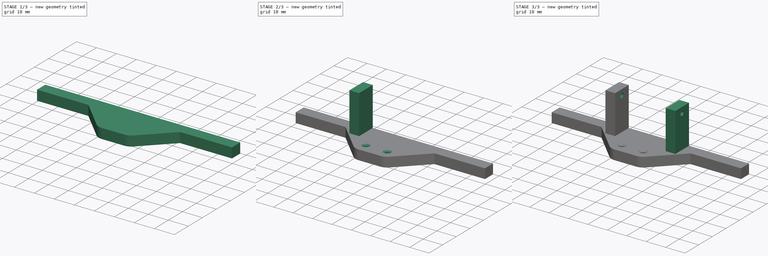
[diagram: build sequence overview — one tinted view per stage of 3, left to right]
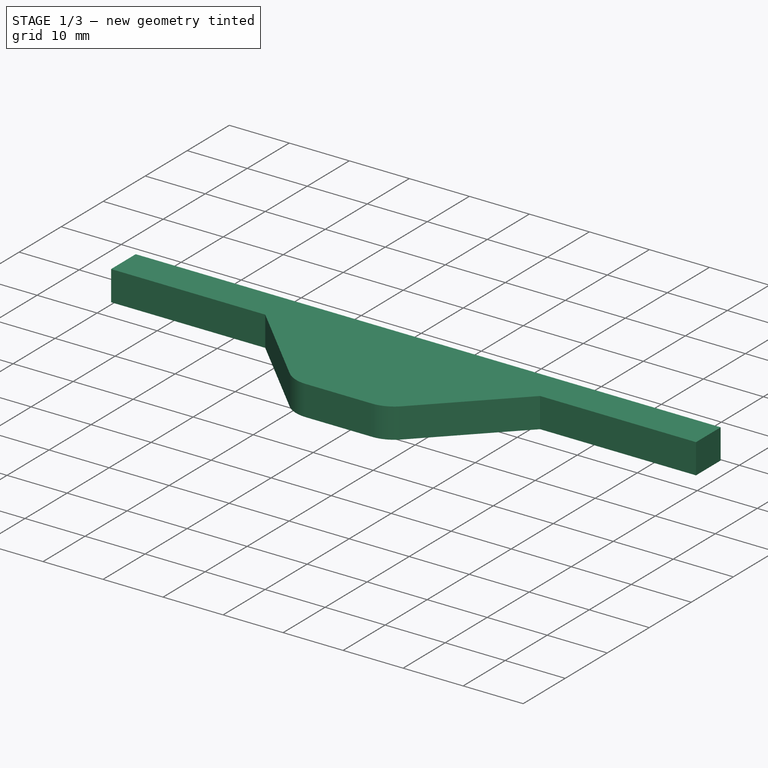
[diagram: stage 1 of 3 — iso view after this stage's code; geometry added in this stage tinted green]
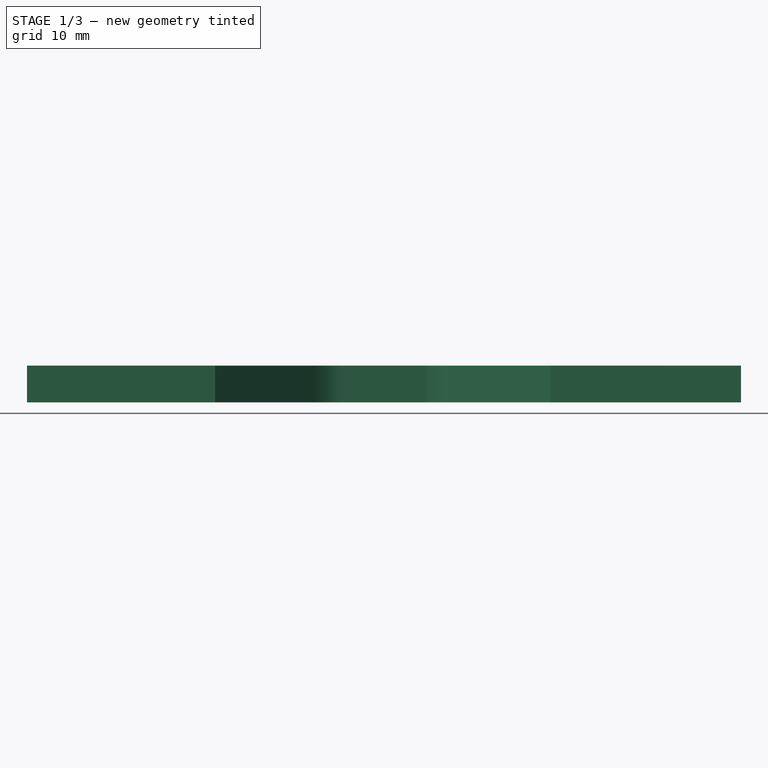
[diagram: stage 1 of 3 — front view after this stage's code; geometry added in this stage tinted green]
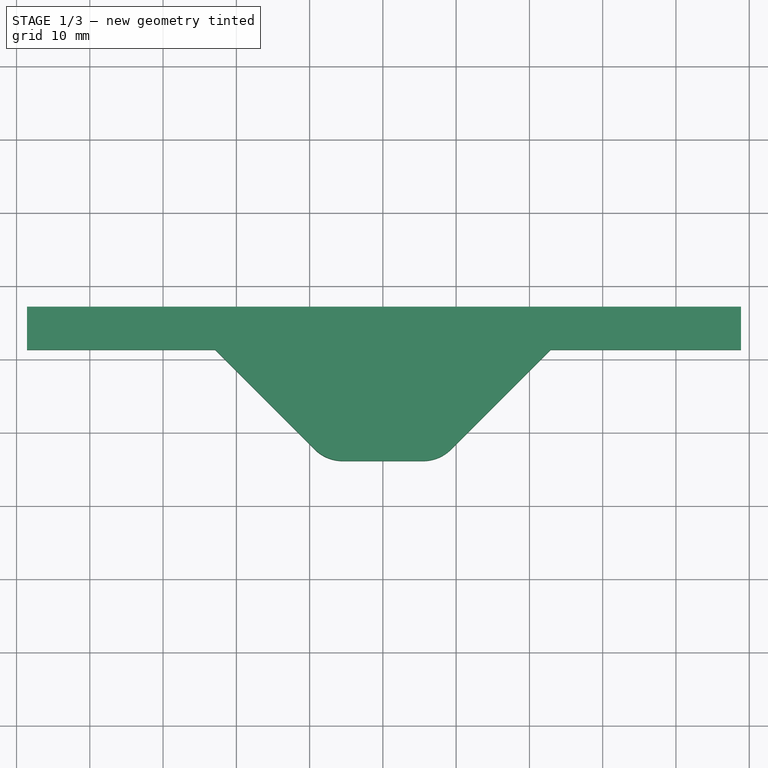
[diagram: stage 1 of 3 — top view after this stage's code; geometry added in this stage tinted green]
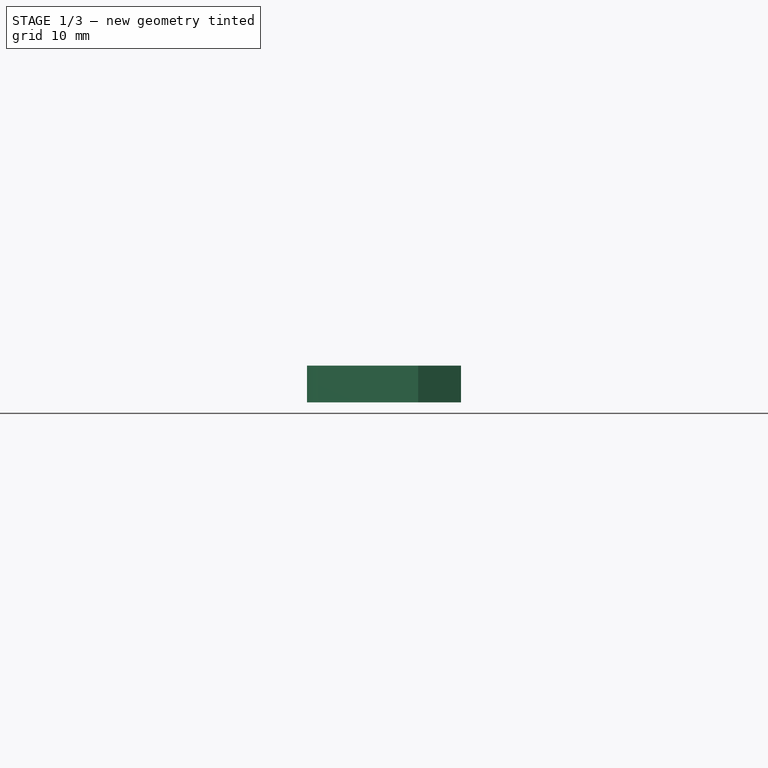
[diagram: stage 1 of 3 — right view after this stage's code; geometry added in this stage tinted green]
FCSTD DOCUMENT  (FreeCAD 0.20R29603 (Git))
Label: RearBumper
License: All rights reserved
LicenseURL: http://en.wikipedia.org/wiki/All_rights_reserved
objects: Sketcher::SketchObject×9, PartDesign::CoordinateSystem×4, PartDesign::Pad×3, PartDesign::Hole×2, PartDesign::Line×2, PartDesign::Pocket×1, PartDesign::Body×1
note: 28 computed .brp shape members not serialized (recipe doc carries the construction recipe); baked Part::Feature solids carry a one-line shape summary decoded from their .brp

FEATURE [Sketcher::SketchObject] Sketch003  label="body_mount_holes"
  FullyConstrained = false
  MapMode = 5
  sketch-geometry (4):
    g0: Circle CenterX=-5.5 CenterY=41.5 CenterZ=0 NormalX=0 NormalY=0 NormalZ=1 AngleXU=0 Radius=3.25
    g1: Circle CenterX=5.5 CenterY=41.5 CenterZ=0 NormalX=0 NormalY=0 NormalZ=1 AngleXU=0 Radius=3.25
    g2: Circle CenterX=-29.4289 CenterY=-36.5 CenterZ=0 NormalX=0 NormalY=0 NormalZ=1 AngleXU=0 Radius=3.25
    g3: Circle CenterX=29.4289 CenterY=-36.5 CenterZ=0 NormalX=0 NormalY=0 NormalZ=1 AngleXU=0 Radius=3.25
  constraints (7):
    c: Symmetric(g0,g1,g-2)
    c: Symmetric(g2,g3,g-2)
    c: Equal(g0,g1)
    c: Equal(g0,g2)
    c: Equal(g0,g3)
    c: Diameter(g0) = 6.5
    c: Distance(g0,g-2) = 5.5
FEATURE [Sketcher::SketchObject] Sketch001  label="pcb_outline"
  FullyConstrained = true
  MapMode = 5
  sketch-geometry (4):
    g0: LineSegment StartX=-40.5 StartY=46.5 StartZ=0 EndX=40.5 EndY=46.5 EndZ=0
    g1: LineSegment StartX=40.5 StartY=46.5 StartZ=0 EndX=40.5 EndY=-46.5 EndZ=0
    g2: LineSegment StartX=40.5 StartY=-46.5 StartZ=0 EndX=-40.5 EndY=-46.5 EndZ=0
    g3: LineSegment StartX=-40.5 StartY=-46.5 StartZ=0 EndX=-40.5 EndY=46.5 EndZ=0
  constraints (10):
    c: Coincident(g0,g1)
    c: Coincident(g1,g2)
    c: Coincident(g2,g3)
    c: Coincident(g3,g0)
    c: Horizontal(g0)
    c: Vertical(g1)
    c: Symmetric(g2,g1,g-2)
    c: Symmetric(g0,g2,g-1)
    c: DistanceX(g0,g0) = 81
    c: DistanceY(g1,g1) = 93
FEATURE [Sketcher::SketchObject] Sketch002  label="motor_mount_holes"
  FullyConstrained = true
  MapMode = 5
  sketch-geometry (8):
    g0: Circle CenterX=-35.75 CenterY=41.8 CenterZ=0 NormalX=0 NormalY=0 NormalZ=1 AngleXU=0 Radius=1.15
    g1: Circle CenterX=-35.75 CenterY=23.8 CenterZ=0 NormalX=0 NormalY=0 NormalZ=1 AngleXU=0 Radius=1.15
    g2: Circle CenterX=35.75 CenterY=41.8 CenterZ=0 NormalX=0 NormalY=0 NormalZ=1 AngleXU=0 Radius=1.15
    g3: Circle CenterX=35.75 CenterY=23.8 CenterZ=0 NormalX=0 NormalY=0 NormalZ=1 AngleXU=0 Radius=1.15
    g4: Circle CenterX=-35.75 CenterY=-10.8 CenterZ=0 NormalX=0 NormalY=0 NormalZ=1 AngleXU=0 Radius=1.15
    g5: Circle CenterX=-35.75 CenterY=-28.8 CenterZ=0 NormalX=0 NormalY=0 NormalZ=1 AngleXU=0 Radius=1.15
    g6: Circle CenterX=35.75 CenterY=-28.8 CenterZ=0 NormalX=0 NormalY=0 NormalZ=1 AngleXU=0 Radius=1.15
    g7: Circle CenterX=35.75 CenterY=-10.8 CenterZ=0 NormalX=0 NormalY=0 NormalZ=1 AngleXU=0 Radius=1.15
  constraints (8):
    c: Block(g0)
    c: Block(g2)
    c: Block(g1)
    c: Block(g3)
    c: Block(g4)
    c: Block(g5)
    c: Block(g6)
    c: Block(g7)
FEATURE [Sketcher::SketchObject] Sketch
  ExternalGeometry = -> [Sketch003]
  FullyConstrained = false
  MapMode = 5
  Support = -> [XY_Plane]
  sketch-geometry (10):
    g0: ArcOfCircle CenterX=-5.5 CenterY=41.5 CenterZ=0 NormalX=0 NormalY=0 NormalZ=1 AngleXU=0 Radius=5.37273 StartAngle=3.92699 EndAngle=4.71753
    g1: ArcOfCircle CenterX=5.5 CenterY=41.5 CenterZ=0 NormalX=0 NormalY=0 NormalZ=1 AngleXU=0 Radius=5.37273 StartAngle=4.70725 EndAngle=5.49779
    g2: LineSegment StartX=-5.4724 StartY=36.1273 StartZ=0 EndX=5.4724 EndY=36.1273 EndZ=0
    g3: LineSegment StartX=-9.29909 StartY=37.7009 StartZ=0 EndX=-22.8952 EndY=51.297 EndZ=0
    g4: LineSegment StartX=9.29909 StartY=37.7009 StartZ=0 EndX=22.8952 EndY=51.297 EndZ=0
    g5: LineSegment StartX=-22.8952 StartY=51.297 StartZ=0 EndX=-48.5781 EndY=51.297 EndZ=0
    g6: LineSegment StartX=22.8952 StartY=51.297 StartZ=0 EndX=48.8818 EndY=51.297 EndZ=0
    g7: LineSegment StartX=-48.5781 StartY=51.297 StartZ=0 EndX=-48.5781 EndY=57.1588 EndZ=0
    g8: LineSegment StartX=-48.5781 StartY=57.1588 StartZ=0 EndX=48.8818 EndY=57.1588 EndZ=0
    g9: LineSegment StartX=48.8818 StartY=51.297 StartZ=0 EndX=48.8818 EndY=57.1588 EndZ=0
  constraints (21):
    c: Coincident(g0,g-3)
    c: Coincident(g1,g-4)
    c: Coincident(g2,g0)
    c: Coincident(g2,g1)
    c: Symmetric(g0,g1,g-2)
    c: Tangent(g3,g0) = 1.5708
    c: Angle(g3) = 2.35619
    c: Equal(g3,g4)
    c: Perpendicular(g4,g3)
    c: Tangent(g4,g1) = -1.5708
    c: Coincident(g5,g3)
    c: Horizontal(g5)
    c: Coincident(g6,g4)
    c: Horizontal(g6)
    c: Coincident(g7,g5)
    c: Vertical(g7)
    c: Coincident(g8,g7)
    c: Horizontal(g8)
    c: Coincident(g9,g6)
    c: Coincident(g9,g8)
    c: Vertical(g9)
FEATURE [PartDesign::Pad] Pad  label="main_pad"
  Direction = (0,0,1)
  Length = 5
  Length2 = 10
  Profile = -> Sketch
  ReferenceAxis = -> Sketch [N_Axis]
  Type = 0
FEATURE [Sketcher::SketchObject] Sketch004  label="pocket_sketch"
  ExternalGeometry = -> [Sketch003]
  FullyConstrained = true
  MapMode = 5
  Placement = pos=(0,0,0) rot=(1,0,0;3.14159rad)
  Support = -> [Pad]
  sketch-geometry (2):
    g0: Circle CenterX=-5.5 CenterY=-41.5 CenterZ=0 NormalX=0 NormalY=0 NormalZ=1 AngleXU=0 Radius=3
    g1: Circle CenterX=5.5 CenterY=-41.5 CenterZ=0 NormalX=0 NormalY=0 NormalZ=1 AngleXU=0 Radius=3
  constraints (4):
    c: Coincident(g0,g-3)
    c: Coincident(g1,g-4)
    c: Equal(g0,g1)
    c: Diameter(g0) = 6
FEATURE [PartDesign::Pocket] Pocket  label="bottom_pocket"
  BaseFeature = -> Pad
  Direction = (0,0,1)
  Length = 3
  Length2 = 5
  Profile = -> Sketch004
  ReferenceAxis = -> Sketch004 [N_Axis]
  Type = 0
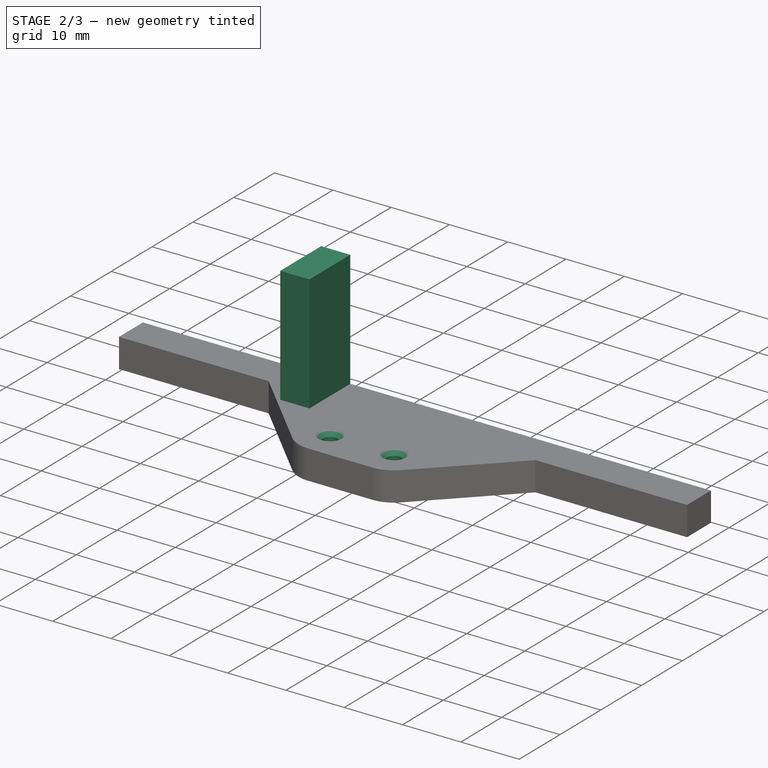
[diagram: stage 2 of 3 — iso view after this stage's code; geometry added in this stage tinted green]
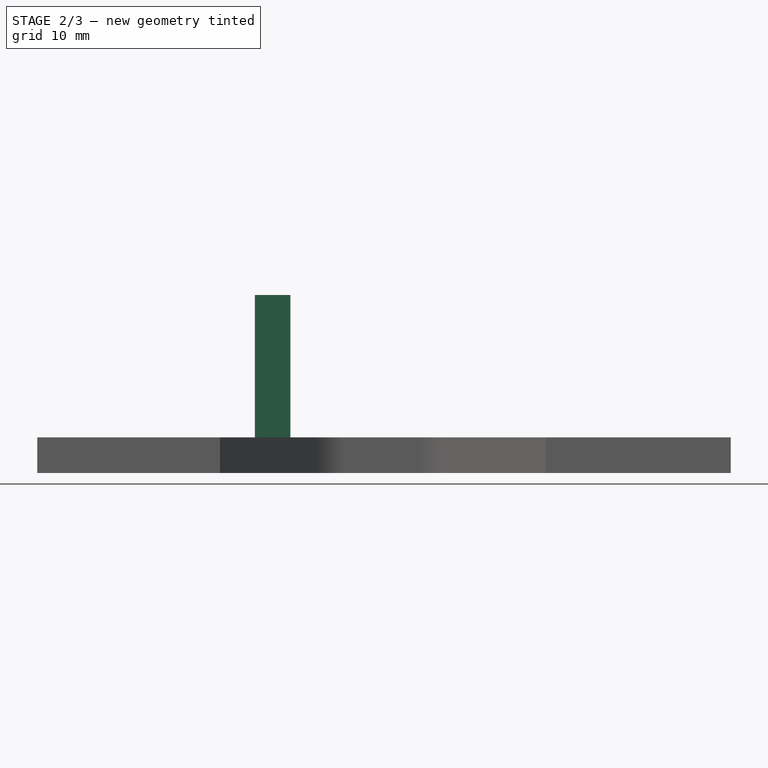
[diagram: stage 2 of 3 — front view after this stage's code; geometry added in this stage tinted green]
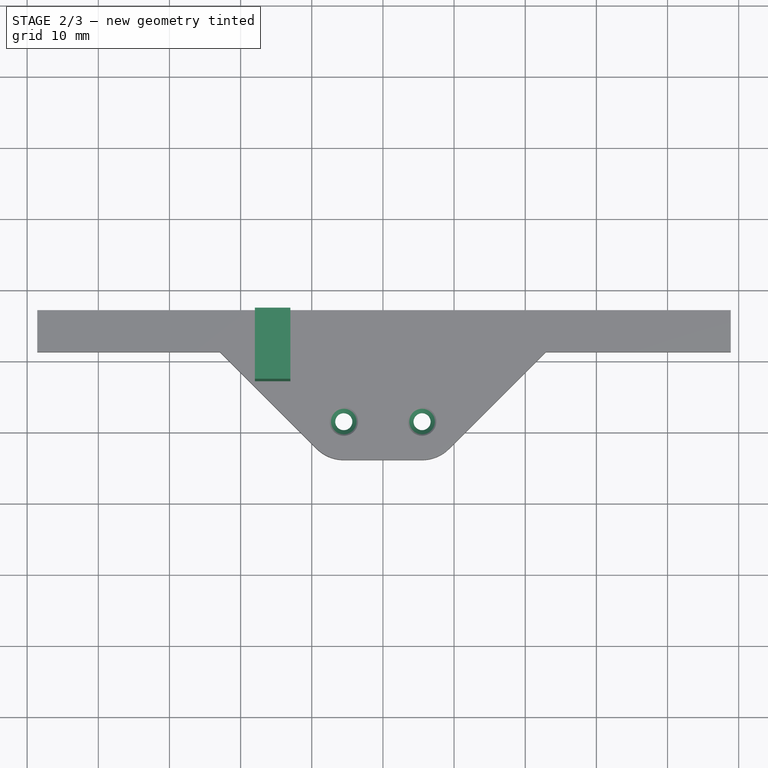
[diagram: stage 2 of 3 — top view after this stage's code; geometry added in this stage tinted green]
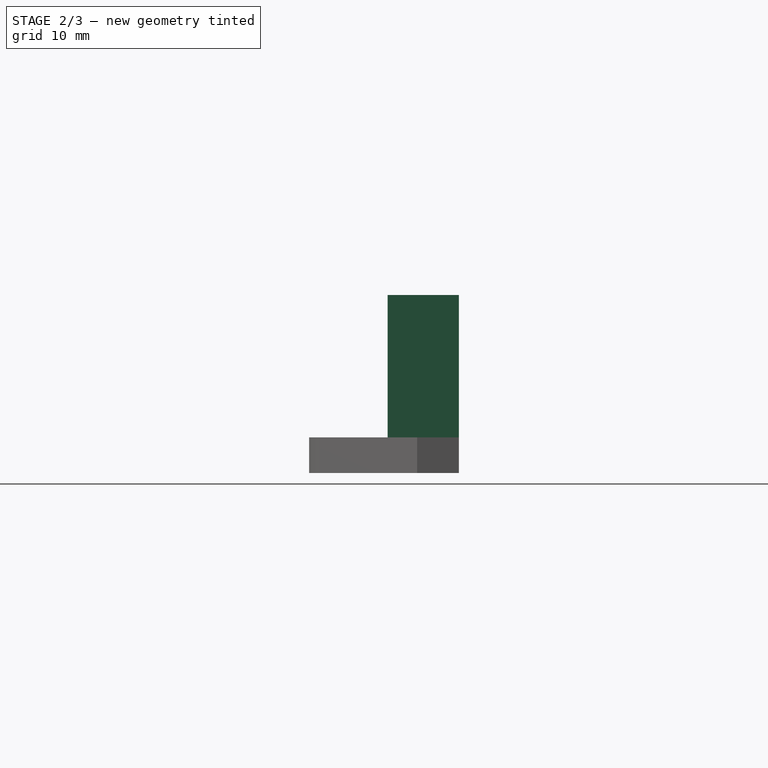
[diagram: stage 2 of 3 — right view after this stage's code; geometry added in this stage tinted green]
FEATURE [Sketcher::SketchObject] Sketch005  label="top_hole_sketch"
  ExternalGeometry = -> [Sketch003]
  FullyConstrained = true
  MapMode = 5
  Placement = pos=(0,0,5) rot=(0,0,1;0rad)
  Support = -> [Pocket]
  expr: Constraints[3] = Sketch004.Constraints[3]
  sketch-geometry (2):
    g0: Circle CenterX=-5.5 CenterY=41.5 CenterZ=0 NormalX=0 NormalY=0 NormalZ=1 AngleXU=0 Radius=3
    g1: Circle CenterX=5.5 CenterY=41.5 CenterZ=0 NormalX=0 NormalY=0 NormalZ=1 AngleXU=0 Radius=3
  constraints (4):
    c: Coincident(g0,g-3)
    c: Coincident(g1,g-4)
    c: Equal(g0,g1)
    c: Diameter(g0) = 6
FEATURE [PartDesign::Hole] Hole  label="top_hole"
  BaseFeature = -> Pocket
  CustomThreadClearance = 0
  Depth = 201.654
  DepthType = 1
  Diameter = 2.4
  DrillForDepth = false
  DrillPoint = 1
  DrillPointAngle = 118
  HoleCutCountersinkAngle = 90
  HoleCutCustomValues = false
  HoleCutDepth = 0
  HoleCutDiameter = 4
  HoleCutType = 2
  ModelThread = false
  Profile = -> Sketch005
  Tapered = false
  TaperedAngle = 90
  ThreadClass = 0
  ThreadDepth = 201.654
  ThreadDepthType = 0
  ThreadDirection = 0
  ThreadFit = 0
  ThreadSize = 6
  ThreadType = 1
  Threaded = false
  UseCustomThreadClearance = false
FEATURE [PartDesign::Line] HoleAxis_1
  AttacherType = Attacher::AttachEngineLine
  Length = 9.15894
  MapMode = 19
  Placement = pos=(5.5,41.5,0) rot=(0,0,1;0rad)
  ResizeMode = 1
  Support = -> [Sketch003]
FEATURE [PartDesign::Line] HoleAxis_2
  AttacherType = Attacher::AttachEngineLine
  Length = 9.15894
  MapMode = 19
  Placement = pos=(-5.5,41.5,0) rot=(0,0,1;0rad)
  ResizeMode = 1
  Support = -> [Sketch003]
FEATURE [Sketcher::SketchObject] Sketch006  label="left_post_sketch"
  ExternalGeometry = -> [Hole]
  FullyConstrained = true
  MapMode = 5
  Placement = pos=(0,0,5) rot=(0,0,1;0rad)
  Support = -> [Hole]
  sketch-geometry (4):
    g0: LineSegment StartX=-18 StartY=57.1588 StartZ=0 EndX=-13 EndY=57.1588 EndZ=0
    g1: LineSegment StartX=-13 StartY=57.1588 StartZ=0 EndX=-13 EndY=47.1588 EndZ=0
    g2: LineSegment StartX=-13 StartY=47.1588 StartZ=0 EndX=-18 EndY=47.1588 EndZ=0
    g3: LineSegment StartX=-18 StartY=47.1588 StartZ=0 EndX=-18 EndY=57.1588 EndZ=0
  constraints (12):
    c: Coincident(g0,g1)
    c: Coincident(g1,g2)
    c: Coincident(g2,g3)
    c: Coincident(g3,g0)
    c: Horizontal(g0)
    c: Horizontal(g2)
    c: Vertical(g1)
    c: Vertical(g3)
    c: PointOnObject(g0,g-3)
    c: DistanceX(g-2,g0) = -13
    c: DistanceX(g0,g0) = 5
    c: DistanceY(g3,g3) = 10
FEATURE [PartDesign::Pad] Pad001  label="left_post_pad"
  BaseFeature = -> Hole
  Direction = (0,0,1)
  Length = 20
  Length2 = 10
  Profile = -> Sketch006
  ReferenceAxis = -> Sketch006 [N_Axis]
  Type = 0
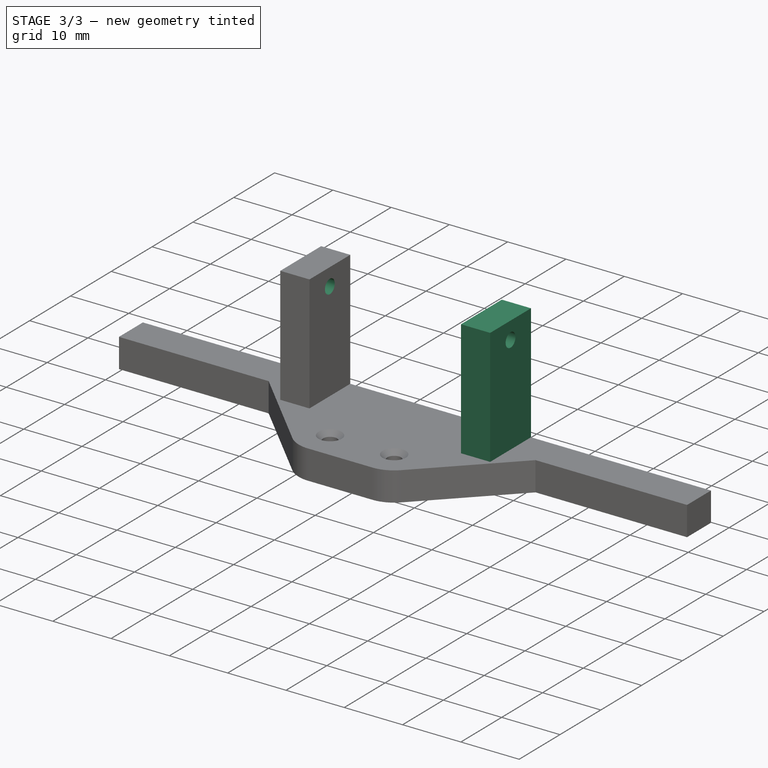
[diagram: stage 3 of 3 — iso view after this stage's code; geometry added in this stage tinted green]
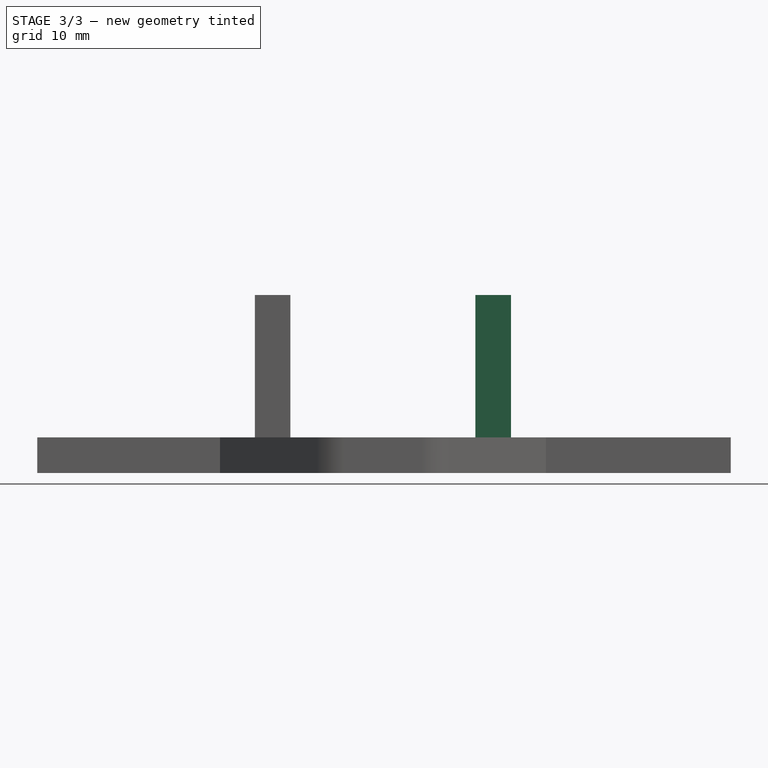
[diagram: stage 3 of 3 — front view after this stage's code; geometry added in this stage tinted green]
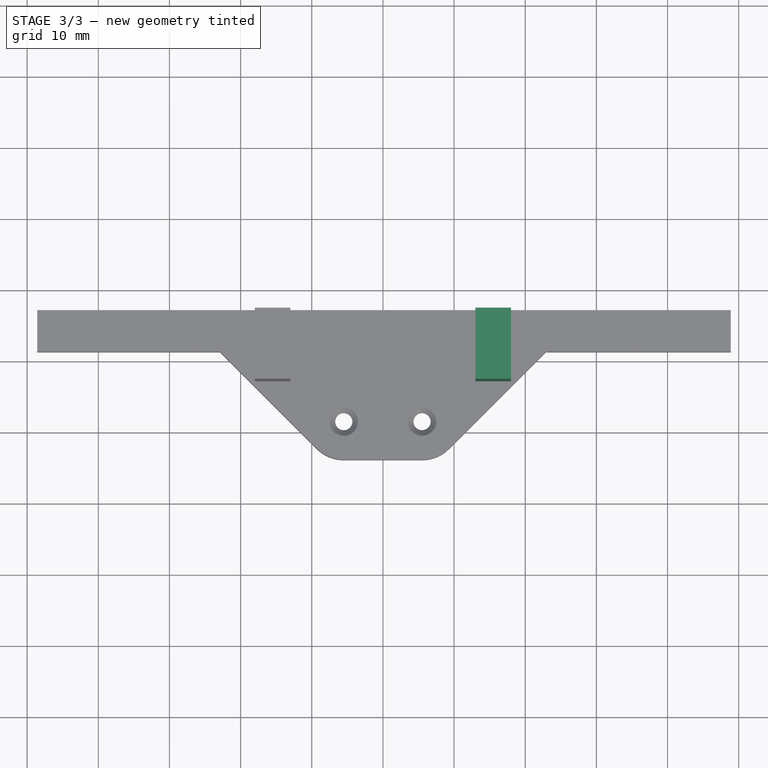
[diagram: stage 3 of 3 — top view after this stage's code; geometry added in this stage tinted green]
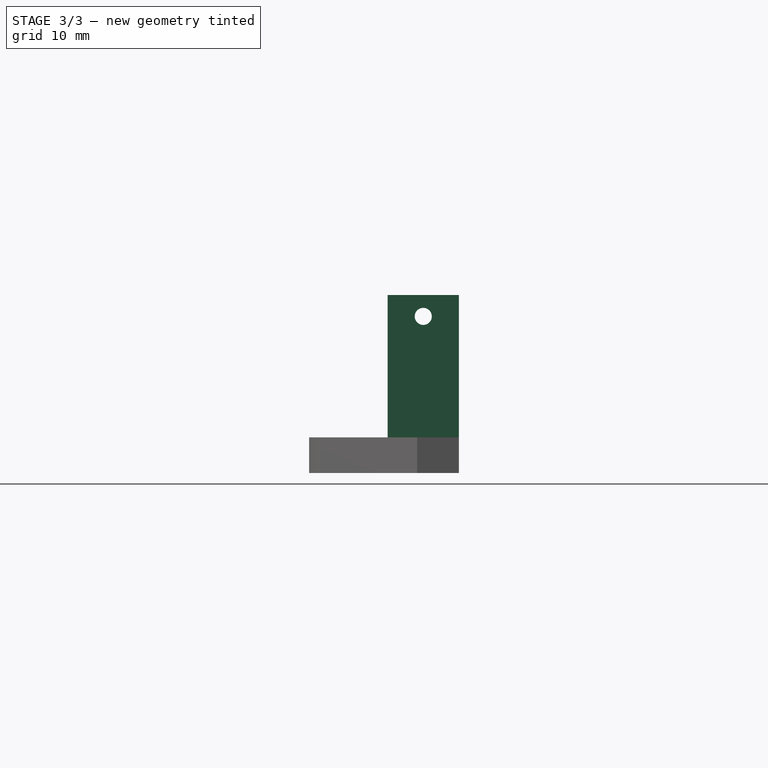
[diagram: stage 3 of 3 — right view after this stage's code; geometry added in this stage tinted green]
FEATURE [Sketcher::SketchObject] Sketch007  label="right_post_pad_sketch"
  ExternalGeometry = -> [Pad001]
  FullyConstrained = true
  MapMode = 5
  Placement = pos=(0,0,5) rot=(0,0,1;0rad)
  Support = -> [Pad001]
  sketch-geometry (4):
    g0: LineSegment StartX=13 StartY=57.1588 StartZ=0 EndX=18 EndY=57.1588 EndZ=0
    g1: LineSegment StartX=18 StartY=57.1588 StartZ=0 EndX=18 EndY=47.1588 EndZ=0
    g2: LineSegment StartX=18 StartY=47.1588 StartZ=0 EndX=13 EndY=47.1588 EndZ=0
    g3: LineSegment StartX=13 StartY=47.1588 StartZ=0 EndX=13 EndY=57.1588 EndZ=0
  constraints (12):
    c: Coincident(g0,g1)
    c: Coincident(g1,g2)
    c: Coincident(g2,g3)
    c: Coincident(g3,g0)
    c: Horizontal(g0)
    c: Horizontal(g2)
    c: Vertical(g1)
    c: Vertical(g3)
    c: PointOnObject(g0,g-3)
    c: DistanceX(g-2,g0) = 13
    c: DistanceX(g0,g0) = 5
    c: DistanceY(g3,g3) = 10
FEATURE [PartDesign::Pad] Pad002  label="right_post_pad"
  BaseFeature = -> Pad001
  Direction = (0,0,1)
  Length = 20
  Length2 = 10
  Profile = -> Sketch007
  ReferenceAxis = -> Sketch007 [N_Axis]
  Type = 0
FEATURE [Sketcher::SketchObject] Sketch008
  ExternalGeometry = -> [Pad002]
  FullyConstrained = true
  MapMode = 5
  Placement = pos=(-18,0,0) rot=(0.57735,-0.57735,-0.57735;2.0944rad)
  Support = -> [Pad002]
  sketch-geometry (3):
    g0: LineSegment StartX=-57.1588 StartY=22 StartZ=0 EndX=-47.1588 EndY=22 EndZ=0
    g1: GeomPoint X=-52.1588 Y=22 Z=0
    g2: Circle CenterX=-52.1588 CenterY=22 CenterZ=0 NormalX=0 NormalY=0 NormalZ=1 AngleXU=0 Radius=1.1
  constraints (7):
    c: PointOnObject(g0,g-3)
    c: PointOnObject(g0,g-4)
    c: Horizontal(g0)
    c: Distance(g-3,g0) = 3
    c: Symmetric(g0,g0,g1)
    c: Coincident(g2,g1)
    c: Diameter(g2) = 2.2
FEATURE [PartDesign::Hole] Hole001
  BaseFeature = -> Pad002
  CustomThreadClearance = 0
  Depth = 203.667
  DepthType = 1
  Diameter = 2.4
  DrillForDepth = false
  DrillPoint = 1
  DrillPointAngle = 118
  HoleCutCountersinkAngle = 90
  HoleCutCustomValues = false
  HoleCutDepth = 0
  HoleCutDiameter = 6.1
  HoleCutType = 0
  ModelThread = false
  Profile = -> Sketch008
  Tapered = false
  TaperedAngle = 90
  ThreadClass = 0
  ThreadDepth = 203.667
  ThreadDepthType = 0
  ThreadDirection = 0
  ThreadFit = 0
  ThreadSize = 6
  ThreadType = 1
  Threaded = false
  UseCustomThreadClearance = false
FEATURE [PartDesign::CoordinateSystem] LCS_1  label="left_outer_hole"
  AttacherType = Attacher::AttachEngine3D
  MapMode = 11
  Placement = pos=(-18,52.1588,22) rot=(0.57735,0.57735,-0.57735;4.18879rad)
  Support = -> [Hole001]
FEATURE [PartDesign::CoordinateSystem] left_inner_hole
  AttacherType = Attacher::AttachEngine3D
  AttachmentOffset = pos=(0,0,0) rot=(0,1,0;3.14159rad)
  MapMode = 11
  Placement = pos=(-13,52.1588,22) rot=(-0.57735,-0.57735,0.57735;2.0944rad)
  Support = -> [Hole001]
FEATURE [PartDesign::CoordinateSystem] right_outer_hole
  AttacherType = Attacher::AttachEngine3D
  AttachmentOffset = pos=(0,0,0) rot=(0,1,0;3.14159rad)
  MapMode = 11
  Placement = pos=(18,52.1588,22) rot=(-0.57735,-0.57735,0.57735;2.0944rad)
  Support = -> [Hole001]
FEATURE [PartDesign::CoordinateSystem] right_inner_hole
  AttacherType = Attacher::AttachEngine3D
  AttachmentOffset = pos=(0,0,0) rot=(0,1,0;3.14159rad)
  MapMode = 11
  Placement = pos=(13,52.1588,22) rot=(-0.57735,-0.57735,0.57735;2.0944rad)
  Support = -> [Hole001]
FEATURE [PartDesign::Body] Body  label="rear_bumper_body"
  Group = -> [Sketch,Sketch003,Sketch001,Sketch002,Pad,Sketch004,Pocket,Sketch005,Hole,HoleAxis_1,HoleAxis_2,Sketch006,Pad001,Sketch007,Pad002,Sketch008,Hole001,LCS_1,left_inner_hole,right_outer_hole,right_inner_hole]
  Origin = -> Origin
  Tip = -> Hole001
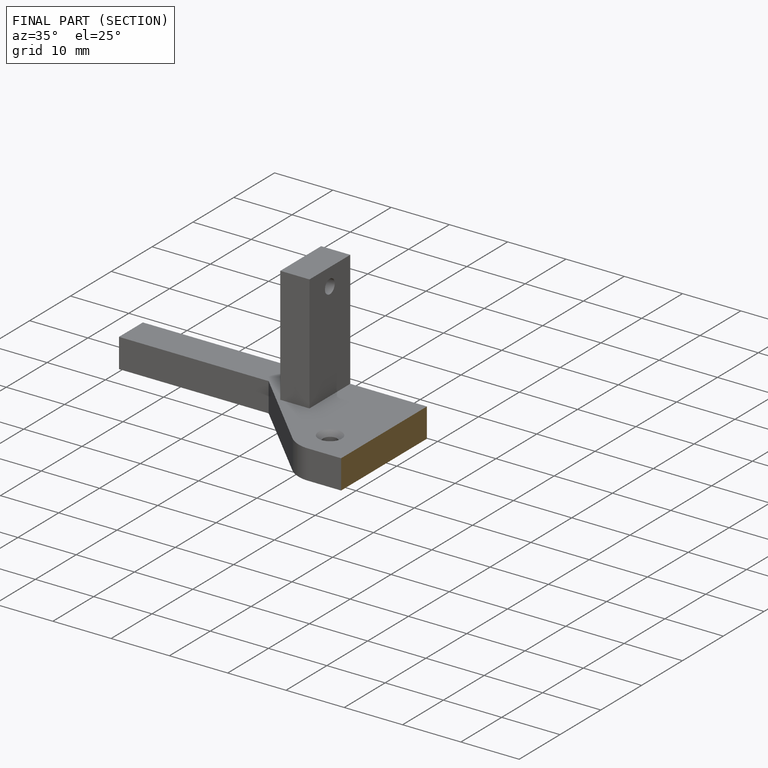
[diagram: finished part — half-section view (interior)]
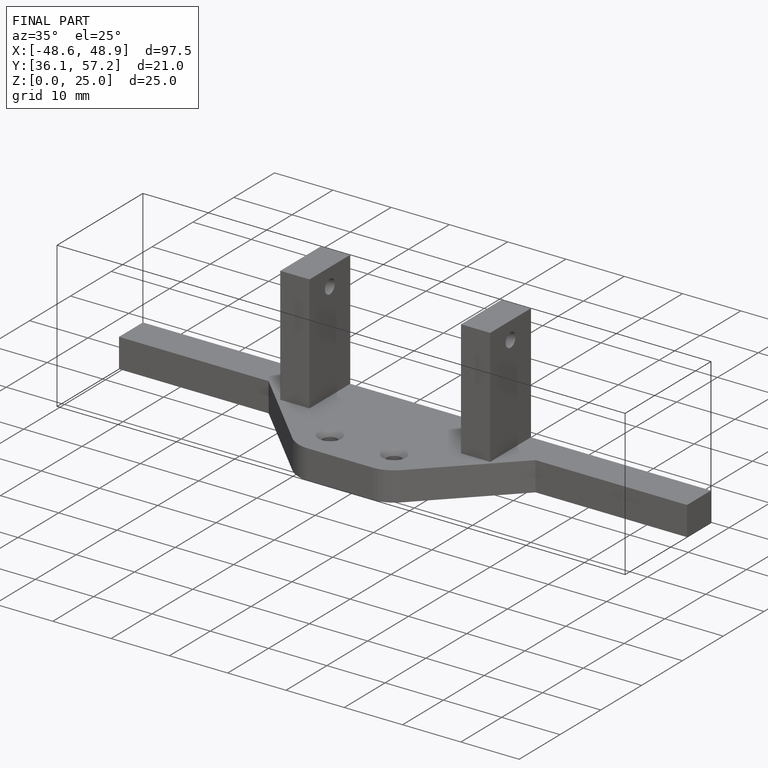
[diagram: finished part — iso view with bounding-box wireframe]
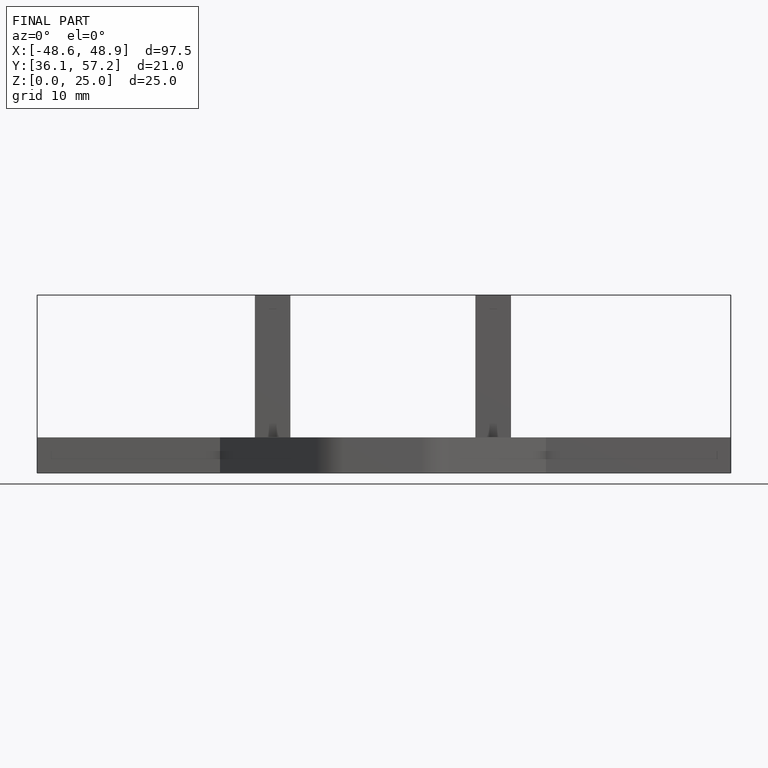
[diagram: finished part — front view with bounding-box wireframe]
